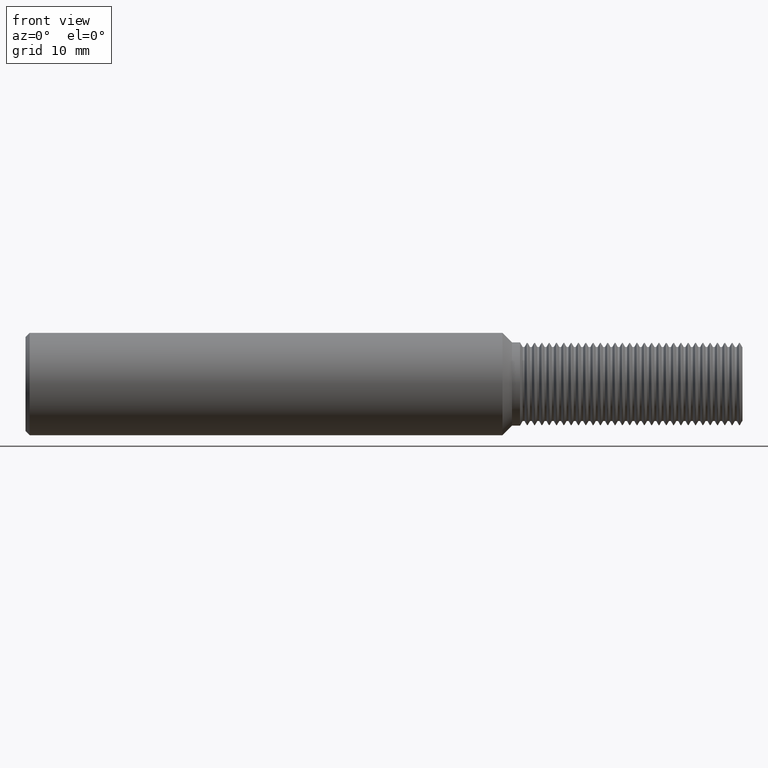
[diagram: clean part render]
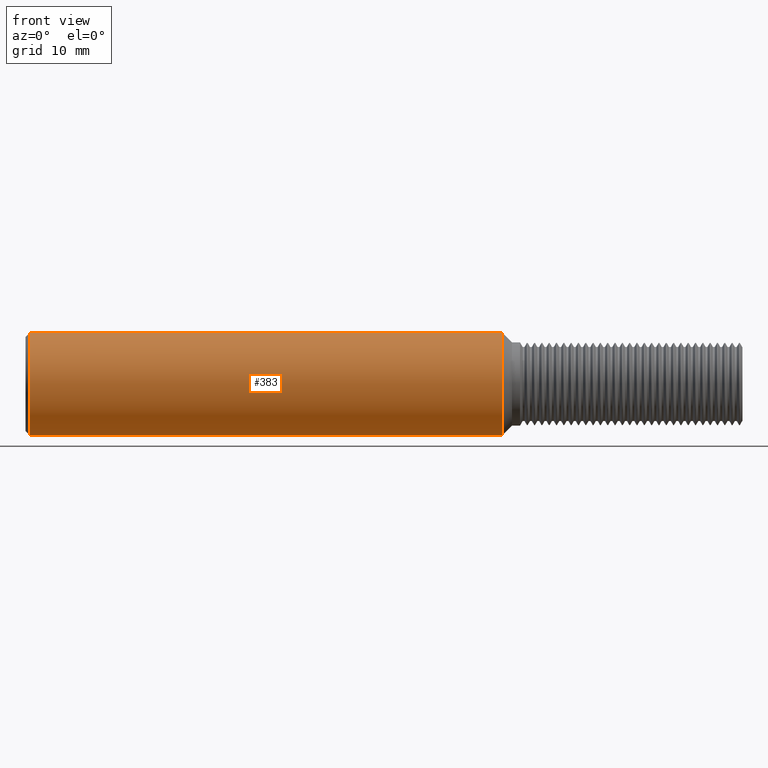
[diagram: same view with one face highlighted and labeled with its STEP entity id]
A machine part, front view. The second image highlights one B-rep face of the part: STEP entity #383.
In plain terms, the highlighted cylindrical surface (partial cylindrical patch) has radius 6.3462 mm, axis along (-1, -0, -0).
Its self-contained STEP definition (entity closure, byte-faithful):
#70 = ORIENTED_EDGE ( 'NONE', *, *, #1046, .T. ) ;
#198 = DIRECTION ( 'NONE',  ( -1.000000000000000000, -0.000000000000000000, -0.000000000000000000 ) ) ;
#357 = DIRECTION ( 'NONE',  ( 0.000000000000000000, 0.000000000000000000, 1.000000000000000000 ) ) ;
#383 = ADVANCED_FACE ( 'NONE', ( #2707 ), #593, .T. ) ;
#593 = CYLINDRICAL_SURFACE ( 'NONE', #6282, 0.2498499999999999888 ) ;
#625 = DIRECTION ( 'NONE',  ( 0.000000000000000000, 0.000000000000000000, 1.000000000000000000 ) ) ;
#691 = ORIENTED_EDGE ( 'NONE', *, *, #2000, .F. ) ;
#924 = LINE ( 'NONE', #4362, #6414 ) ;
#941 = CIRCLE ( 'NONE', #2613, 0.2498499999999999888 ) ;
#1046 = EDGE_CURVE ( 'NONE', #1977, #4791, #2523, .T. ) ;
#1714 = DIRECTION ( 'NONE',  ( 0.000000000000000000, 0.000000000000000000, -1.000000000000000000 ) ) ;
#1959 = DIRECTION ( 'NONE',  ( -1.000000000000000000, -0.000000000000000000, -0.000000000000000000 ) ) ;
#1977 = VERTEX_POINT ( 'NONE', #3556 ) ;
#1998 = AXIS2_PLACEMENT_3D ( 'NONE', #4278, #5706, #357 ) ;
#2000 = EDGE_CURVE ( 'NONE', #1977, #4317, #3903, .T. ) ;
#2171 = DIRECTION ( 'NONE',  ( 1.000000000000000000, 0.000000000000000000, 0.000000000000000000 ) ) ;
#2453 = CARTESIAN_POINT ( 'NONE',  ( 0.02000000000000009409, 3.059780027669661931E-17, 0.2498499999999999888 ) ) ;
#2523 = CIRCLE ( 'NONE', #1998, 0.2498499999999999888 ) ;
#2613 = AXIS2_PLACEMENT_3D ( 'NONE', #2660, #2171, #1714 ) ;
#2660 = CARTESIAN_POINT ( 'NONE',  ( 0.02000000000000009409, 0.000000000000000000, 0.000000000000000000 ) ) ;
#2707 = FACE_OUTER_BOUND ( 'NONE', #5528, .T. ) ;
#2778 = EDGE_CURVE ( 'NONE', #3959, #4317, #941, .T. ) ;
#2830 = ORIENTED_EDGE ( 'NONE', *, *, #3243, .T. ) ;
#3243 = EDGE_CURVE ( 'NONE', #4791, #3959, #924, .T. ) ;
#3556 = CARTESIAN_POINT ( 'NONE',  ( 2.328149999999999942, 3.059780027669661931E-17, -0.2498499999999999888 ) ) ;
#3563 = CARTESIAN_POINT ( 'NONE',  ( 2.328149999999999942, 0.000000000000000000, 0.2498499999999999888 ) ) ;
#3891 = VECTOR ( 'NONE', #1959, 39.37007874015748143 ) ;
#3903 = LINE ( 'NONE', #5514, #3891 ) ;
#3959 = VERTEX_POINT ( 'NONE', #2453 ) ;
#4047 = CARTESIAN_POINT ( 'NONE',  ( 0.02000000000000009409, 0.000000000000000000, -0.2498499999999999888 ) ) ;
#4278 = CARTESIAN_POINT ( 'NONE',  ( 2.328149999999999942, 0.000000000000000000, 0.000000000000000000 ) ) ;
#4317 = VERTEX_POINT ( 'NONE', #4047 ) ;
#4362 = CARTESIAN_POINT ( 'NONE',  ( 0.000000000000000000, 0.000000000000000000, 0.2498499999999999888 ) ) ;
#4786 = DIRECTION ( 'NONE',  ( -1.000000000000000000, -0.000000000000000000, -0.000000000000000000 ) ) ;
#4791 = VERTEX_POINT ( 'NONE', #3563 ) ;
#4861 = ORIENTED_EDGE ( 'NONE', *, *, #2778, .T. ) ;
#5514 = CARTESIAN_POINT ( 'NONE',  ( 0.000000000000000000, 3.059780027669661931E-17, -0.2498499999999999888 ) ) ;
#5528 = EDGE_LOOP ( 'NONE', ( #691, #70, #2830, #4861 ) ) ;
#5706 = DIRECTION ( 'NONE',  ( -1.000000000000000000, -0.000000000000000000, -0.000000000000000000 ) ) ;
#6139 = CARTESIAN_POINT ( 'NONE',  ( 0.000000000000000000, 0.000000000000000000, 0.000000000000000000 ) ) ;
#6282 = AXIS2_PLACEMENT_3D ( 'NONE', #6139, #198, #625 ) ;
#6414 = VECTOR ( 'NONE', #4786, 39.37007874015748143 ) ;